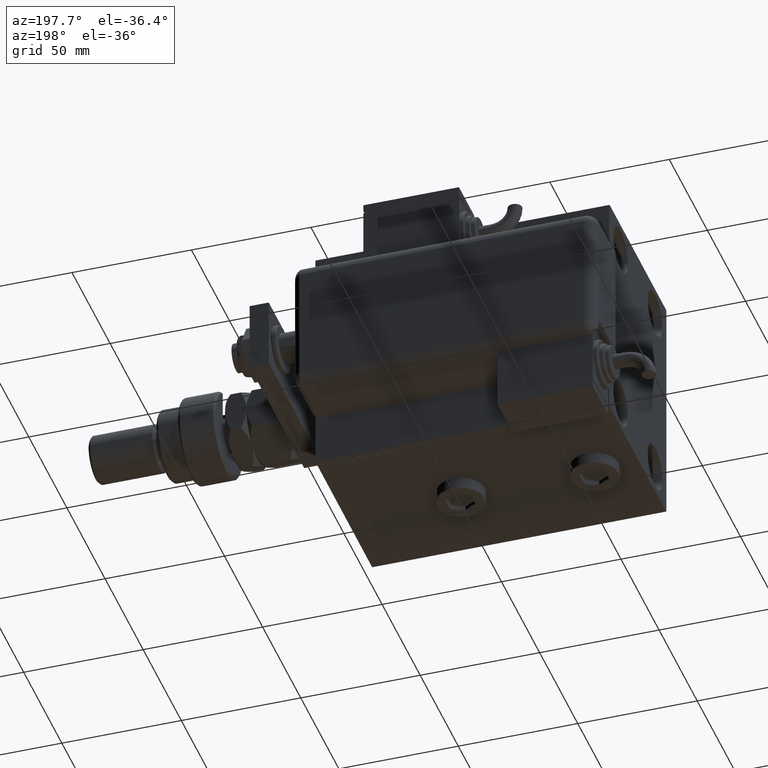
[diagram: clean part render]
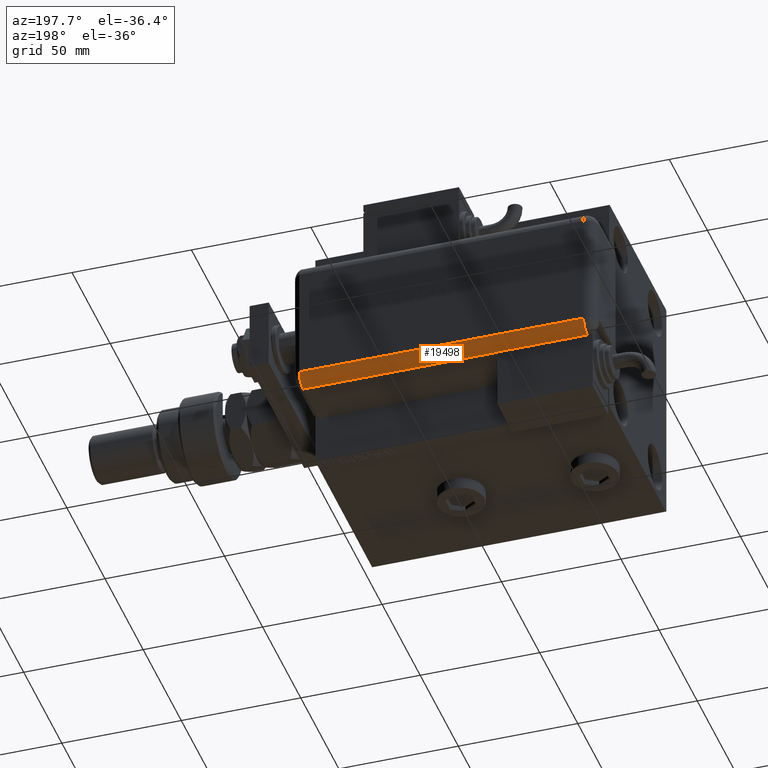
[diagram: same view with one face highlighted and labeled with its STEP entity id]
A machine part, auxiliary view. The second image highlights one B-rep face of the part: STEP entity #19498.
In plain terms, the highlighted cylindrical surface (edge-blend (fillet) strip) has radius 5 mm, axis along (-1, -0, -0).
Its self-contained STEP definition (entity closure, byte-faithful):
#1800 = CARTESIAN_POINT ( 'NONE',  ( 23.99999999999999289, 25.79999999999998295, 124.0000000000000000 ) ) ;
#2139 = CARTESIAN_POINT ( 'NONE',  ( 28.99599839871871154, 20.99999999999999289, 43.00000000000000000 ) ) ;
#2225 = EDGE_CURVE ( 'NONE', #35317, #39008, #13981, .T. ) ;
#3845 = CARTESIAN_POINT ( 'NONE',  ( 28.99599839871871154, 20.99999999999998224, 124.0000000000000000 ) ) ;
#3874 = VERTEX_POINT ( 'NONE', #1800 ) ;
#5241 = EDGE_CURVE ( 'NONE', #46008, #35887, #17253, .T. ) ;
#6651 = CARTESIAN_POINT ( 'NONE',  ( 23.99999999999999289, 25.79999999999998295, 124.0000000000000000 ) ) ;
#6811 = DIRECTION ( 'NONE',  ( -1.000000000000000000, 0.000000000000000000, 0.000000000000000000 ) ) ;
#6961 = LINE ( 'NONE', #6651, #58697 ) ;
#8163 = ORIENTED_EDGE ( 'NONE', *, *, #5241, .F. ) ;
#9640 = DIRECTION ( 'NONE',  ( -1.000000000000000000, 0.000000000000000000, 0.000000000000000000 ) ) ;
#9956 = DIRECTION ( 'NONE',  ( 0.000000000000000000, 0.000000000000000000, -1.000000000000000000 ) ) ;
#10108 = CARTESIAN_POINT ( 'NONE',  ( 23.99999999999999289, 20.79999999999998295, 124.0000000000000000 ) ) ;
#13965 = CARTESIAN_POINT ( 'NONE',  ( 28.99999999999999645, 20.79999999999998295, 43.00000000000000000 ) ) ;
#13981 = LINE ( 'NONE', #3845, #16403 ) ;
#15168 = EDGE_CURVE ( 'NONE', #39008, #46008, #20788, .T. ) ;
#15462 = VECTOR ( 'NONE', #62963, 1000.000000000000000 ) ;
#16403 = VECTOR ( 'NONE', #17895, 1000.000000000000000 ) ;
#17253 = LINE ( 'NONE', #37164, #15462 ) ;
#17895 = DIRECTION ( 'NONE',  ( -0.000000000000000000, -0.000000000000000000, 1.000000000000000000 ) ) ;
#18899 = AXIS2_PLACEMENT_3D ( 'NONE', #24950, #9956, #9640 ) ;
#19498 = ADVANCED_FACE ( 'NONE', ( #20409 ), #40002, .T. ) ;
#20409 = FACE_OUTER_BOUND ( 'NONE', #54550, .T. ) ;
#20788 = CIRCLE ( 'NONE', #41668, 5.000000000000000888 ) ;
#21387 = CIRCLE ( 'NONE', #57858, 5.000000000000000888 ) ;
#24738 = CARTESIAN_POINT ( 'NONE',  ( 23.99999999999999289, 20.79999999999998295, 43.00000000000000000 ) ) ;
#24950 = CARTESIAN_POINT ( 'NONE',  ( 23.99999999999999289, 20.79999999999998295, 124.0000000000000000 ) ) ;
#26298 = ORIENTED_EDGE ( 'NONE', *, *, #60340, .T. ) ;
#31637 = EDGE_CURVE ( 'NONE', #35887, #3874, #21387, .T. ) ;
#32249 = CARTESIAN_POINT ( 'NONE',  ( 23.99999999999999289, 20.79999999999998295, 5.000000000000004441 ) ) ;
#35271 = ORIENTED_EDGE ( 'NONE', *, *, #31637, .F. ) ;
#35317 = VERTEX_POINT ( 'NONE', #60192 ) ;
#35887 = VERTEX_POINT ( 'NONE', #61984 ) ;
#37164 = CARTESIAN_POINT ( 'NONE',  ( 28.99999999999999645, 20.79999999999998295, 124.0000000000000000 ) ) ;
#39008 = VERTEX_POINT ( 'NONE', #2139 ) ;
#40002 = CYLINDRICAL_SURFACE ( 'NONE', #18899, 5.000000000000000888 ) ;
#40151 = DIRECTION ( 'NONE',  ( -1.000000000000000000, 0.000000000000000000, 0.000000000000000000 ) ) ;
#41668 = AXIS2_PLACEMENT_3D ( 'NONE', #24738, #64602, #55461 ) ;
#43074 = ORIENTED_EDGE ( 'NONE', *, *, #2225, .F. ) ;
#45690 = DIRECTION ( 'NONE',  ( -0.000000000000000000, -0.000000000000000000, 1.000000000000000000 ) ) ;
#46008 = VERTEX_POINT ( 'NONE', #13965 ) ;
#46675 = CARTESIAN_POINT ( 'NONE',  ( 23.99999999999999289, 25.79999999999998295, 5.000000000000004441 ) ) ;
#48431 = CIRCLE ( 'NONE', #57696, 5.000000000000000888 ) ;
#49660 = VERTEX_POINT ( 'NONE', #46675 ) ;
#52175 = DIRECTION ( 'NONE',  ( -0.000000000000000000, -0.000000000000000000, 1.000000000000000000 ) ) ;
#53614 = ORIENTED_EDGE ( 'NONE', *, *, #15168, .F. ) ;
#54550 = EDGE_LOOP ( 'NONE', ( #53614, #43074, #26298, #60477, #35271, #8163 ) ) ;
#55461 = DIRECTION ( 'NONE',  ( 1.000000000000000000, -6.383782391594648845E-14, 0.000000000000000000 ) ) ;
#56807 = EDGE_CURVE ( 'NONE', #3874, #49660, #6961, .T. ) ;
#57234 = DIRECTION ( 'NONE',  ( 0.000000000000000000, 0.000000000000000000, -1.000000000000000000 ) ) ;
#57696 = AXIS2_PLACEMENT_3D ( 'NONE', #32249, #52175, #6811 ) ;
#57858 = AXIS2_PLACEMENT_3D ( 'NONE', #10108, #45690, #40151 ) ;
#58697 = VECTOR ( 'NONE', #57234, 1000.000000000000000 ) ;
#60192 = CARTESIAN_POINT ( 'NONE',  ( 28.99599839871871154, 21.00000000000000000, 5.000000000000004441 ) ) ;
#60340 = EDGE_CURVE ( 'NONE', #35317, #49660, #48431, .T. ) ;
#60477 = ORIENTED_EDGE ( 'NONE', *, *, #56807, .F. ) ;
#61984 = CARTESIAN_POINT ( 'NONE',  ( 28.99999999999999645, 20.79999999999998295, 124.0000000000000000 ) ) ;
#62963 = DIRECTION ( 'NONE',  ( -0.000000000000000000, -0.000000000000000000, 1.000000000000000000 ) ) ;
#64602 = DIRECTION ( 'NONE',  ( -0.000000000000000000, 0.000000000000000000, -1.000000000000000000 ) ) ;